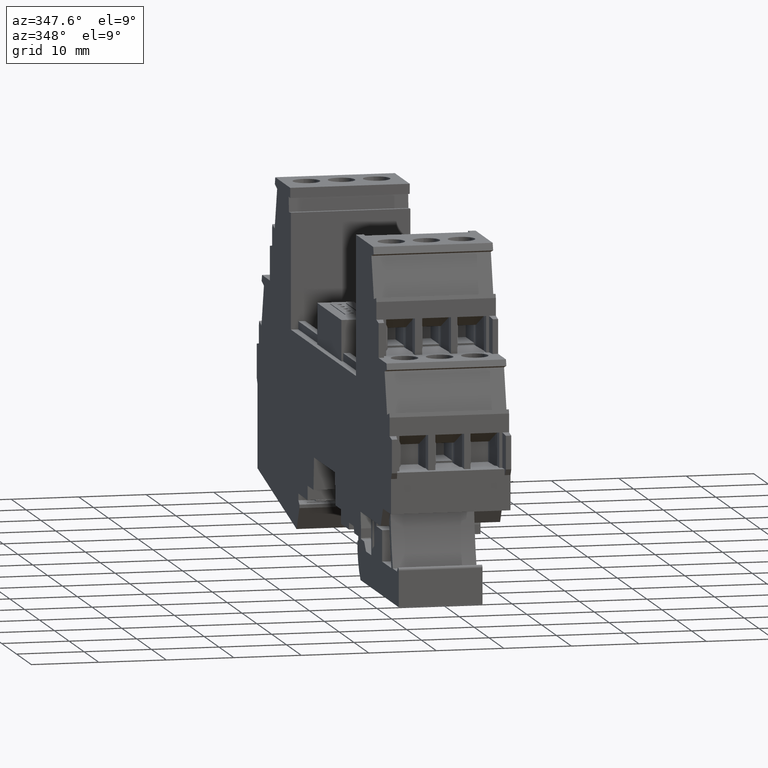
[diagram: clean part render]
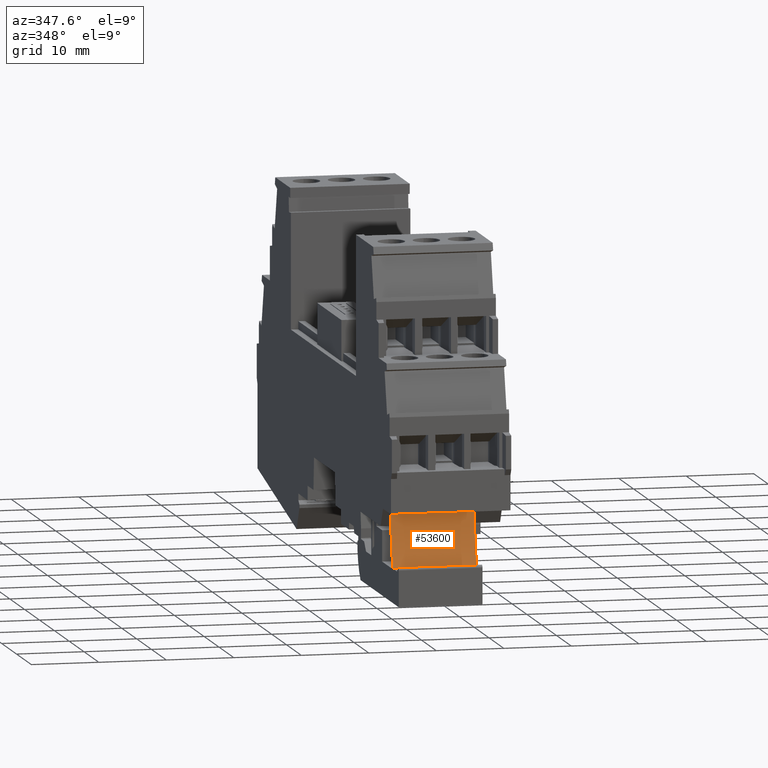
[diagram: same view with one face highlighted and labeled with its STEP entity id]
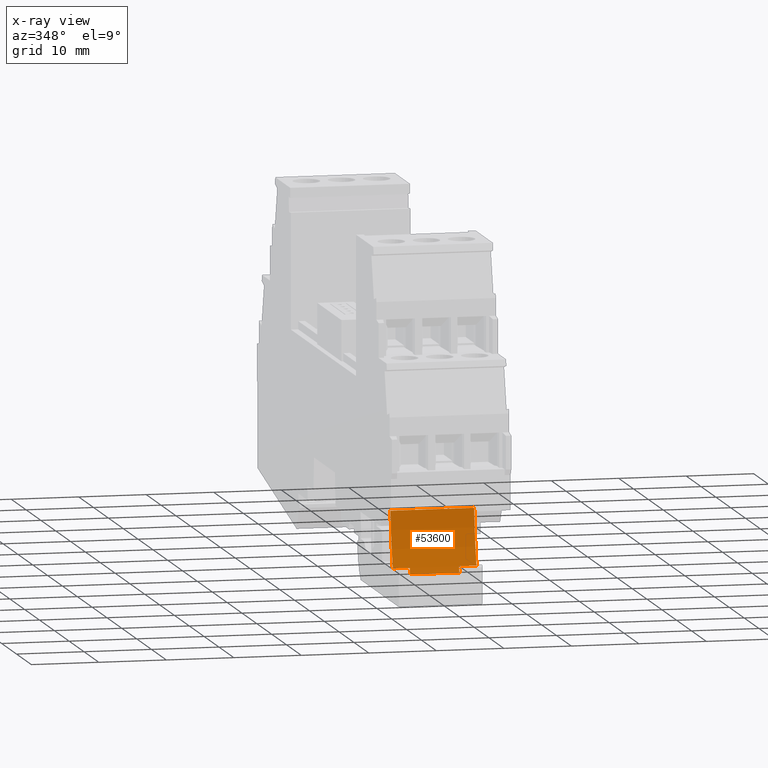
[diagram: x-ray of the same camera — body ghosted, the highlighted face saturated]
A machine part, auxiliary view. The second image highlights one B-rep face of the part: STEP entity #53600.
The next image is the same camera in x-ray: the body ghosted, the highlighted face saturated — about 0% of this face is hidden behind the body in this view.
In plain terms, the highlighted cylindrical surface (partial cylindrical patch) has radius 36.4216 mm, axis along (1, 0, 0).
Its self-contained STEP definition (entity closure, byte-faithful):
#51440=CARTESIAN_POINT('',(100.753346461785,9.60000046083364,
-1.11334144047662));
#51450=DIRECTION('',(-0.866025403784439,-0.5,5.98096597759787E-11));
#51460=DIRECTION('',(-0.5,0.866025403784439,-1.59346701584556E-11));
#51470=AXIS2_PLACEMENT_3D('',#51440,#51450,#51460);
#51480=PLANE('',#51470);
#51630=CARTESIAN_POINT('',(99.7945118984799,11.2607506421518,
12.4366585567829));
#51640=VERTEX_POINT('',#51630);
#51670=CARTESIAN_POINT('',(63.4807811780982,14.0623254588533,
-1.7173438438346));
#51680=DIRECTION('',(-1.31820480445855E-13,4.41130550527766E-11,1.));
#51690=DIRECTION('',(0.949996010420321,-0.312262037695065,
1.39000613902499E-11));
#51700=AXIS2_PLACEMENT_3D('',#51670,#51680,#51690);
#51710=CYLINDRICAL_SURFACE('',#51700,36.42164);
#51720=CARTESIAN_POINT('',(99.7945118984176,11.2607506407764,
0.0366585544081978));
#51730=CARTESIAN_POINT('',(99.7945118984228,11.2607506408911,
1.06999188793942));
#51740=CARTESIAN_POINT('',(99.794511898428,11.2607506410057,
2.10332522147063));
#51750=CARTESIAN_POINT('',(99.7945118984332,11.2607506411203,
3.13665855500186));
#51760=CARTESIAN_POINT('',(99.7945118984384,11.2607506412349,
4.16999188853305));
#51770=CARTESIAN_POINT('',(99.7945118984435,11.2607506413495,
5.20332522206431));
#51780=CARTESIAN_POINT('',(99.7945118984487,11.2607506414641,
6.23665855559553));
#51790=CARTESIAN_POINT('',(99.7945118984539,11.2607506415788,
7.26999188912675));
#51800=CARTESIAN_POINT('',(99.7945118984591,11.2607506416934,
8.30332522265803));
#51810=CARTESIAN_POINT('',(99.7945118984643,11.260750641808,
9.3366585561892));
#51820=CARTESIAN_POINT('',(99.7945118984669,11.2607506418653,
9.85332522295481));
#51830=CARTESIAN_POINT('',(99.7945118984695,11.2607506419226,
10.3699918897204));
#51840=CARTESIAN_POINT('',(99.7945118984721,11.2607506419799,
10.886658556486));
#51850=CARTESIAN_POINT('',(99.7945118984747,11.2607506420372,
11.4033252232517));
#51860=CARTESIAN_POINT('',(99.7945118984773,11.2607506420945,
11.9199918900173));
#51870=CARTESIAN_POINT('',(99.7945118984799,11.2607506421519,
12.4366585567829));
#51880=B_SPLINE_CURVE_WITH_KNOTS('',3,(#51720,#51730,#51740,#51750,
#51760,#51770,#51780,#51790,#51800,#51810,#51820,#51830,#51840,#51850,
#51860,#51870),.UNSPECIFIED.,.F.,.F.,(4,3,3,3,3,4),(0.,3.10000000059367,
6.20000000118733,9.300000001781,10.8500000020778,12.4000000023747),
.UNSPECIFIED.);
#51890=SURFACE_CURVE('',#51880,(#51480,#51710),.CURVE_3D.);
#51900=CARTESIAN_POINT('',(99.7945118984176,11.2607506407764,
0.0366585544081932));
#51910=VERTEX_POINT('',#51900);
#51920=EDGE_CURVE('',#51910,#51640,#51890,.T.);
#53030=CARTESIAN_POINT('',(98.1962249565643,3.04534658287468,
-1.71734384334403));
#53040=DIRECTION('',(-1.31820480445855E-13,4.41130550527766E-11,1.));
#53050=VECTOR('',#53040,1.);
#53060=LINE('',#53030,#53050);
#53070=CARTESIAN_POINT('',(98.1962249565628,3.04534658338437,
9.83665855535494));
#53080=VERTEX_POINT('',#53070);
#53090=CARTESIAN_POINT('',(98.1962249565624,3.04534658349906,
12.4366585571451));
#53100=VERTEX_POINT('',#53090);
#53110=EDGE_CURVE('',#53080,#53100,#53060,.T.);
#53120=ORIENTED_EDGE('',*,*,#53110,.T.);
#53130=CARTESIAN_POINT('',(63.4807811780967,14.062325459363,
9.83665855487652));
#53140=DIRECTION('',(-1.31820480445855E-13,4.41130550527766E-11,1.));
#53150=DIRECTION('',(0.949996010420321,-0.312262037695065,
1.39000613902499E-11));
#53160=AXIS2_PLACEMENT_3D('',#53130,#53140,#53150);
#53170=CIRCLE('',#53160,36.42164);
#53180=CARTESIAN_POINT('',(97.9030055295001,2.16079904502235,
9.83665855539427));
#53190=VERTEX_POINT('',#53180);
#53200=EDGE_CURVE('',#53190,#53080,#53170,.T.);
#53210=ORIENTED_EDGE('',*,*,#53200,.T.);
#53220=CARTESIAN_POINT('',(97.9030055295001,2.16079904502238,
9.83665855539427));
#53230=DIRECTION('',(2.96303130012416E-13,4.4360232322123E-11,1.));
#53240=VECTOR('',#53230,1.);
#53250=LINE('',#53220,#53240);
#53260=CARTESIAN_POINT('',(97.9030055295002,2.16079904469776,
2.53665855523139));
#53270=VERTEX_POINT('',#53260);
#53280=EDGE_CURVE('',#53270,#53190,#53250,.T.);
#53290=ORIENTED_EDGE('',*,*,#53280,.T.);
#53300=CARTESIAN_POINT('',(63.4807811780976,14.062325459041,
2.53665855470185));
#53310=DIRECTION('',(-1.31820480445855E-13,4.41130550527766E-11,1.));
#53320=DIRECTION('',(0.949996010420321,-0.312262037695065,
1.39000613902499E-11));
#53330=AXIS2_PLACEMENT_3D('',#53300,#53310,#53320);
#53340=CIRCLE('',#53330,36.42164);
#53350=CARTESIAN_POINT('',(98.1962249565638,3.04534658306235,
2.53665855519242));
#53360=VERTEX_POINT('',#53350);
#53370=EDGE_CURVE('',#53270,#53360,#53340,.T.);
#53380=ORIENTED_EDGE('',*,*,#53370,.F.);
#53390=CARTESIAN_POINT('',(98.1962249565641,3.04534658295206,
0.0366585547703835));
#53400=VERTEX_POINT('',#53390);
#53410=EDGE_CURVE('',#53400,#53360,#53060,.T.);
#53420=ORIENTED_EDGE('',*,*,#53410,.T.);
#53430=CARTESIAN_POINT('',(63.480781178098,14.0623254589307,
0.0366585542798177));
#53440=DIRECTION('',(-1.31820480445855E-13,4.41130550527766E-11,1.));
#53450=DIRECTION('',(0.949996010420321,-0.312262037695065,
1.39000613902499E-11));
#53460=AXIS2_PLACEMENT_3D('',#53430,#53440,#53450);
#53470=CIRCLE('',#53460,36.42164);
#53480=EDGE_CURVE('',#53400,#51910,#53470,.T.);
#53490=ORIENTED_EDGE('',*,*,#53480,.F.);
#53500=ORIENTED_EDGE('',*,*,#51920,.F.);
#53510=CARTESIAN_POINT('',(63.4807811780964,14.0623254594777,
12.4366585566545));
#53520=DIRECTION('',(-1.31820480445855E-13,4.41130550527766E-11,1.));
#53530=DIRECTION('',(0.949996010420321,-0.312262037695065,
1.39000613902499E-11));
#53540=AXIS2_PLACEMENT_3D('',#53510,#53520,#53530);
#53550=CIRCLE('',#53540,36.42164);
#53560=EDGE_CURVE('',#53100,#51640,#53550,.T.);
#53570=ORIENTED_EDGE('',*,*,#53560,.T.);
#53580=EDGE_LOOP('',(#53570,#53500,#53490,#53420,#53380,#53290,#53210,
#53120));
#53590=FACE_OUTER_BOUND('',#53580,.T.);
#53600=ADVANCED_FACE('',(#53590),#51710,.F.);